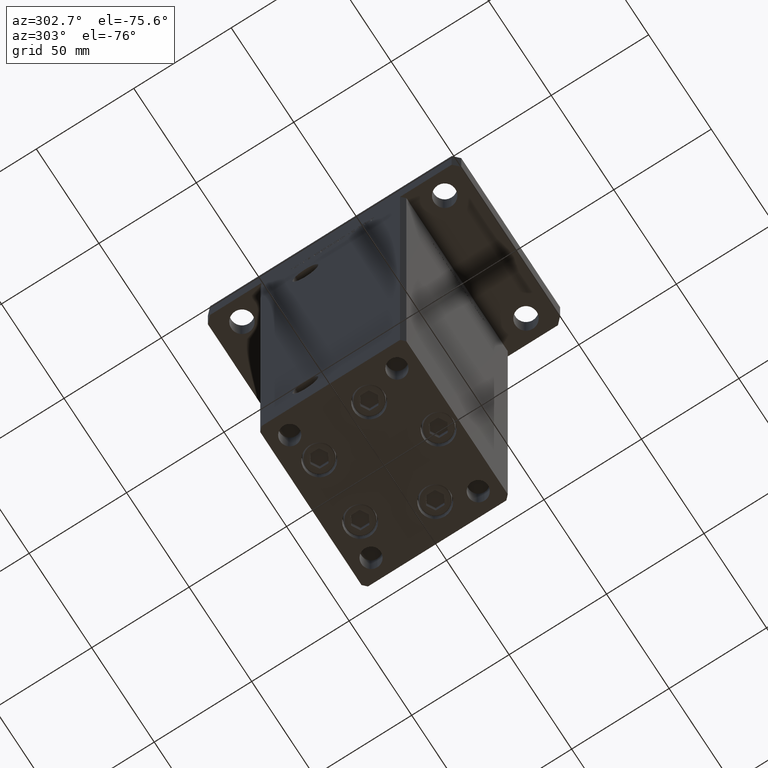
[diagram: clean part render]
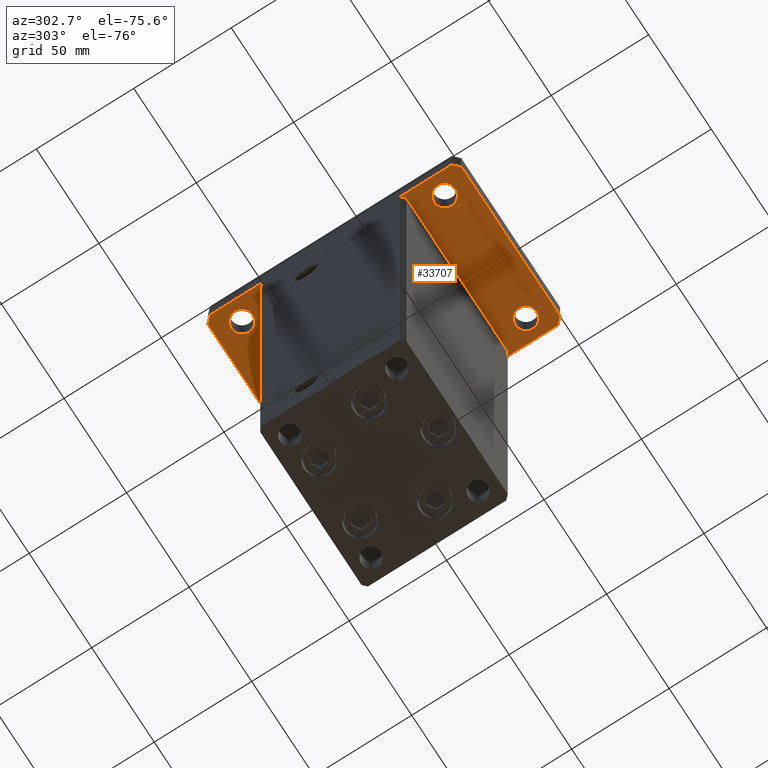
[diagram: same view with one face highlighted and labeled with its STEP entity id]
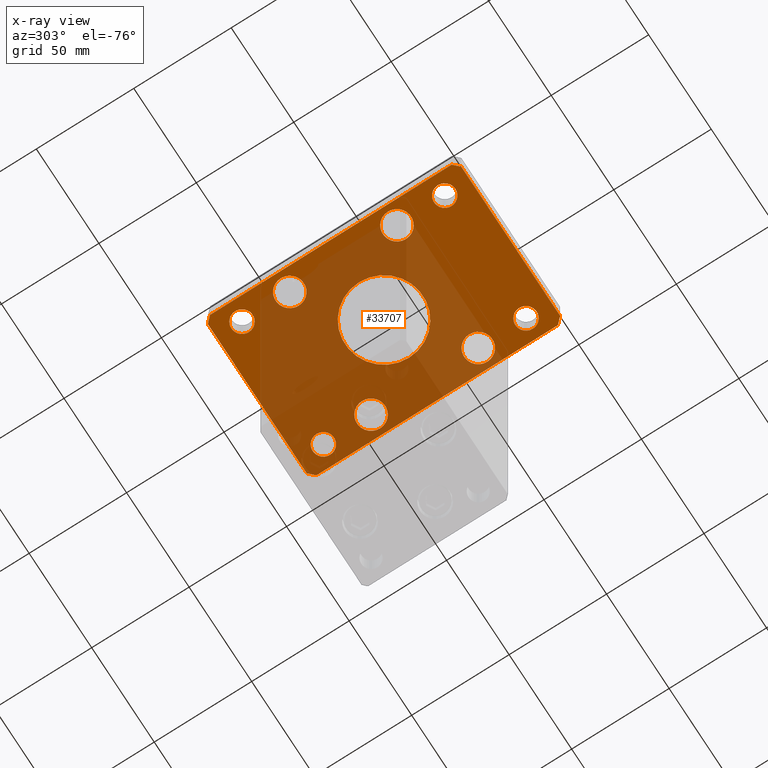
[diagram: x-ray of the same camera — body ghosted, the highlighted face saturated]
A machine part, auxiliary view. The second image highlights one B-rep face of the part: STEP entity #33707.
The next image is the same camera in x-ray: the body ghosted, the highlighted face saturated — about 61% of this face is hidden behind the body in this view.
In plain terms, the highlighted planar face has unit normal (0, 0, 1).
Its self-contained STEP definition (entity closure, byte-faithful):
#811 = CARTESIAN_POINT ( 'NONE',  ( 32.50000000000000000, 51.99999999999999289, 0.000000000000000000 ) ) ;
#830 = EDGE_CURVE ( 'NONE', #23466, #4563, #28311, .T. ) ;
#1159 = AXIS2_PLACEMENT_3D ( 'NONE', #33738, #38326, #25861 ) ;
#1207 = LINE ( 'NONE', #46744, #20004 ) ;
#1465 = CARTESIAN_POINT ( 'NONE',  ( 0.000000000000000000, 0.000000000000000000, 0.000000000000000000 ) ) ;
#1791 = DIRECTION ( 'NONE',  ( 1.000000000000000000, 0.000000000000000000, 0.000000000000000000 ) ) ;
#1895 = VECTOR ( 'NONE', #32898, 1000.000000000000000 ) ;
#2286 = ORIENTED_EDGE ( 'NONE', *, *, #38781, .T. ) ;
#2293 = FACE_BOUND ( 'NONE', #50921, .T. ) ;
#2374 = EDGE_CURVE ( 'NONE', #50977, #36416, #36636, .T. ) ;
#2878 = EDGE_CURVE ( 'NONE', #34114, #34511, #6334, .T. ) ;
#3084 = VERTEX_POINT ( 'NONE', #14997 ) ;
#3096 = EDGE_CURVE ( 'NONE', #11212, #7724, #12414, .T. ) ;
#3319 = ORIENTED_EDGE ( 'NONE', *, *, #7684, .T. ) ;
#3340 = LINE ( 'NONE', #23938, #20313 ) ;
#3637 = EDGE_CURVE ( 'NONE', #45139, #43926, #25458, .T. ) ;
#3762 = VERTEX_POINT ( 'NONE', #40183 ) ;
#4294 = CARTESIAN_POINT ( 'NONE',  ( -32.50000000000000711, 27.50000000000000000, 0.000000000000000000 ) ) ;
#4563 = VERTEX_POINT ( 'NONE', #38650 ) ;
#4836 = CIRCLE ( 'NONE', #46403, 5.499999999999994671 ) ;
#4901 = EDGE_LOOP ( 'NONE', ( #30068, #33505 ) ) ;
#5387 = VERTEX_POINT ( 'NONE', #19126 ) ;
#5391 = CIRCLE ( 'NONE', #29615, 7.249999999999999112 ) ;
#6130 = CIRCLE ( 'NONE', #39912, 5.499999999999991118 ) ;
#6326 = DIRECTION ( 'NONE',  ( 0.000000000000000000, 0.000000000000000000, 1.000000000000000000 ) ) ;
#6334 = CIRCLE ( 'NONE', #1159, 7.249999999999999112 ) ;
#6581 = AXIS2_PLACEMENT_3D ( 'NONE', #12352, #28887, #45160 ) ;
#6867 = CARTESIAN_POINT ( 'NONE',  ( 32.49999999999997868, -52.00000000000000711, 0.000000000000000000 ) ) ;
#6972 = EDGE_CURVE ( 'NONE', #31096, #45150, #3340, .T. ) ;
#7098 = DIRECTION ( 'NONE',  ( 0.000000000000000000, 0.000000000000000000, 1.000000000000000000 ) ) ;
#7130 = VECTOR ( 'NONE', #32280, 1000.000000000000000 ) ;
#7431 = CARTESIAN_POINT ( 'NONE',  ( 42.50000000000000000, -61.99999999999988631, 0.000000000000000000 ) ) ;
#7684 = EDGE_CURVE ( 'NONE', #30173, #52869, #23835, .T. ) ;
#7717 = DIRECTION ( 'NONE',  ( 0.7071067811865459074, 0.7071067811865491270, 0.000000000000000000 ) ) ;
#7724 = VERTEX_POINT ( 'NONE', #27075 ) ;
#8041 = ORIENTED_EDGE ( 'NONE', *, *, #36213, .F. ) ;
#9123 = EDGE_CURVE ( 'NONE', #23507, #5387, #26463, .T. ) ;
#9261 = VERTEX_POINT ( 'NONE', #45064 ) ;
#9606 = EDGE_CURVE ( 'NONE', #27660, #28420, #4836, .T. ) ;
#9615 = AXIS2_PLACEMENT_3D ( 'NONE', #11218, #44021, #47546 ) ;
#9962 = CIRCLE ( 'NONE', #35075, 20.00000000000000000 ) ;
#10002 = CARTESIAN_POINT ( 'NONE',  ( 32.50000000000000000, -27.50000000000000000, 0.000000000000000000 ) ) ;
#10122 = DIRECTION ( 'NONE',  ( 1.000000000000000000, 0.000000000000000000, 0.000000000000000000 ) ) ;
#10178 = FACE_BOUND ( 'NONE', #39776, .T. ) ;
#10279 = CARTESIAN_POINT ( 'NONE',  ( 39.50000000000001421, -64.99999999999988631, 0.000000000000000000 ) ) ;
#10711 = DIRECTION ( 'NONE',  ( 1.000000000000000000, 0.000000000000000000, -0.000000000000000000 ) ) ;
#10778 = CARTESIAN_POINT ( 'NONE',  ( -32.49999999999997868, -52.00000000000000711, 0.000000000000000000 ) ) ;
#11091 = CARTESIAN_POINT ( 'NONE',  ( 42.50000000000000000, 62.00000000000000711, 0.000000000000000000 ) ) ;
#11093 = CARTESIAN_POINT ( 'NONE',  ( 32.50000000000000000, 27.50000000000000000, 0.000000000000000000 ) ) ;
#11212 = VERTEX_POINT ( 'NONE', #45823 ) ;
#11218 = CARTESIAN_POINT ( 'NONE',  ( 32.49999999999997868, -52.00000000000000711, 0.000000000000000000 ) ) ;
#11311 = AXIS2_PLACEMENT_3D ( 'NONE', #30130, #30386, #39320 ) ;
#11379 = VERTEX_POINT ( 'NONE', #35771 ) ;
#11817 = CARTESIAN_POINT ( 'NONE',  ( 39.50000000000002842, 65.00000000000002842, 0.000000000000000000 ) ) ;
#12352 = CARTESIAN_POINT ( 'NONE',  ( 0.000000000000000000, 0.000000000000000000, 0.000000000000000000 ) ) ;
#12364 = ORIENTED_EDGE ( 'NONE', *, *, #34809, .T. ) ;
#12376 = VECTOR ( 'NONE', #7717, 1000.000000000000114 ) ;
#12414 = CIRCLE ( 'NONE', #14168, 5.499999999999998224 ) ;
#12690 = ORIENTED_EDGE ( 'NONE', *, *, #22394, .T. ) ;
#12923 = ORIENTED_EDGE ( 'NONE', *, *, #21895, .T. ) ;
#13179 = DIRECTION ( 'NONE',  ( 1.000000000000000000, 0.000000000000000000, 0.000000000000000000 ) ) ;
#14083 = DIRECTION ( 'NONE',  ( 1.000000000000000000, 0.000000000000000000, 0.000000000000000000 ) ) ;
#14168 = AXIS2_PLACEMENT_3D ( 'NONE', #6867, #15268, #48330 ) ;
#14185 = DIRECTION ( 'NONE',  ( 0.000000000000000000, 0.000000000000000000, 1.000000000000000000 ) ) ;
#14202 = CARTESIAN_POINT ( 'NONE',  ( 27.00000000000001421, 51.99999999999999289, 0.000000000000000000 ) ) ;
#14476 = VERTEX_POINT ( 'NONE', #29836 ) ;
#14511 = ORIENTED_EDGE ( 'NONE', *, *, #6972, .F. ) ;
#14767 = FACE_OUTER_BOUND ( 'NONE', #19247, .T. ) ;
#14997 = CARTESIAN_POINT ( 'NONE',  ( -37.99999999999997868, -52.00000000000000711, 0.000000000000000000 ) ) ;
#15178 = CARTESIAN_POINT ( 'NONE',  ( -27.00000000000000711, 52.00000000000000000, 0.000000000000000000 ) ) ;
#15268 = DIRECTION ( 'NONE',  ( 0.000000000000000000, 0.000000000000000000, 1.000000000000000000 ) ) ;
#15270 = DIRECTION ( 'NONE',  ( 1.000000000000000000, 0.000000000000000000, 0.000000000000000000 ) ) ;
#15337 = ORIENTED_EDGE ( 'NONE', *, *, #27150, .T. ) ;
#15538 = AXIS2_PLACEMENT_3D ( 'NONE', #25469, #37940, #37664 ) ;
#15810 = CARTESIAN_POINT ( 'NONE',  ( 39.75000000000000000, -27.50000000000000000, 0.000000000000000000 ) ) ;
#15834 = DIRECTION ( 'NONE',  ( 1.000000000000000000, 0.000000000000000000, 0.000000000000000000 ) ) ;
#16104 = DIRECTION ( 'NONE',  ( 0.000000000000000000, 0.000000000000000000, 1.000000000000000000 ) ) ;
#16262 = CARTESIAN_POINT ( 'NONE',  ( 25.25000000000000000, 27.50000000000000000, 0.000000000000000000 ) ) ;
#16579 = VECTOR ( 'NONE', #24283, 1000.000000000000000 ) ;
#17246 = CARTESIAN_POINT ( 'NONE',  ( -32.49999999999997868, -52.00000000000000711, 0.000000000000000000 ) ) ;
#17350 = DIRECTION ( 'NONE',  ( 0.000000000000000000, 0.000000000000000000, 1.000000000000000000 ) ) ;
#18313 = ORIENTED_EDGE ( 'NONE', *, *, #46250, .F. ) ;
#18565 = FACE_BOUND ( 'NONE', #23307, .T. ) ;
#19099 = FACE_BOUND ( 'NONE', #4901, .T. ) ;
#19106 = VERTEX_POINT ( 'NONE', #44227 ) ;
#19126 = CARTESIAN_POINT ( 'NONE',  ( 20.00000000000000000, 2.449293598294706513E-15, 0.000000000000000000 ) ) ;
#19247 = EDGE_LOOP ( 'NONE', ( #8041, #38041, #28377, #30850, #52212, #14511, #48709, #52485 ) ) ;
#19489 = DIRECTION ( 'NONE',  ( 0.000000000000000000, 0.000000000000000000, 1.000000000000000000 ) ) ;
#19551 = LINE ( 'NONE', #26876, #35106 ) ;
#19727 = EDGE_CURVE ( 'NONE', #14476, #3084, #20486, .T. ) ;
#20004 = VECTOR ( 'NONE', #26401, 1000.000000000000000 ) ;
#20279 = AXIS2_PLACEMENT_3D ( 'NONE', #51590, #6326, #15270 ) ;
#20313 = VECTOR ( 'NONE', #44543, 1000.000000000000000 ) ;
#20461 = CARTESIAN_POINT ( 'NONE',  ( 37.99999999999999289, 51.99999999999999289, 0.000000000000000000 ) ) ;
#20486 = CIRCLE ( 'NONE', #34351, 5.499999999999994671 ) ;
#20695 = CARTESIAN_POINT ( 'NONE',  ( -32.50000000000000000, -27.50000000000000000, 0.000000000000000000 ) ) ;
#20857 = CIRCLE ( 'NONE', #9615, 5.499999999999998224 ) ;
#21584 = ORIENTED_EDGE ( 'NONE', *, *, #9123, .F. ) ;
#21895 = EDGE_CURVE ( 'NONE', #34511, #34114, #41336, .T. ) ;
#22070 = DIRECTION ( 'NONE',  ( 0.000000000000000000, 0.000000000000000000, -1.000000000000000000 ) ) ;
#22102 = DIRECTION ( 'NONE',  ( 0.000000000000000000, 0.000000000000000000, 1.000000000000000000 ) ) ;
#22192 = DIRECTION ( 'NONE',  ( 1.000000000000000000, 0.000000000000000000, 0.000000000000000000 ) ) ;
#22385 = VECTOR ( 'NONE', #49259, 1000.000000000000000 ) ;
#22394 = EDGE_CURVE ( 'NONE', #3084, #14476, #24047, .T. ) ;
#22903 = CARTESIAN_POINT ( 'NONE',  ( 0.000000000000000000, 0.000000000000000000, 0.000000000000000000 ) ) ;
#22970 = DIRECTION ( 'NONE',  ( 1.000000000000000000, 0.000000000000000000, 0.000000000000000000 ) ) ;
#23007 = CARTESIAN_POINT ( 'NONE',  ( -20.00000000000000000, 0.000000000000000000, 0.000000000000000000 ) ) ;
#23307 = EDGE_LOOP ( 'NONE', ( #12690, #50574 ) ) ;
#23466 = VERTEX_POINT ( 'NONE', #10279 ) ;
#23507 = VERTEX_POINT ( 'NONE', #23007 ) ;
#23835 = CIRCLE ( 'NONE', #33352, 7.249999999999999112 ) ;
#23938 = CARTESIAN_POINT ( 'NONE',  ( 42.50000000000000000, 62.00000000000000711, 0.000000000000000000 ) ) ;
#24047 = CIRCLE ( 'NONE', #50864, 5.499999999999994671 ) ;
#24080 = EDGE_LOOP ( 'NONE', ( #53237, #12364 ) ) ;
#24283 = DIRECTION ( 'NONE',  ( -1.000000000000000000, -3.513364001978340512E-16, 0.000000000000000000 ) ) ;
#24386 = EDGE_CURVE ( 'NONE', #11379, #25165, #36804, .T. ) ;
#24559 = EDGE_LOOP ( 'NONE', ( #21584, #18313 ) ) ;
#25116 = ORIENTED_EDGE ( 'NONE', *, *, #45330, .T. ) ;
#25165 = VERTEX_POINT ( 'NONE', #26485 ) ;
#25458 = CIRCLE ( 'NONE', #51416, 5.499999999999991118 ) ;
#25469 = CARTESIAN_POINT ( 'NONE',  ( 32.50000000000000000, 27.50000000000000000, 0.000000000000000000 ) ) ;
#25656 = CARTESIAN_POINT ( 'NONE',  ( -32.50000000000000000, -27.50000000000000000, 0.000000000000000000 ) ) ;
#25861 = DIRECTION ( 'NONE',  ( 1.000000000000000000, 0.000000000000000000, 0.000000000000000000 ) ) ;
#26254 = DIRECTION ( 'NONE',  ( 0.000000000000000000, 0.000000000000000000, 1.000000000000000000 ) ) ;
#26302 = CARTESIAN_POINT ( 'NONE',  ( -25.25000000000000000, -27.50000000000000000, 0.000000000000000000 ) ) ;
#26401 = DIRECTION ( 'NONE',  ( 1.000000000000000000, 1.405345600791337191E-15, 0.000000000000000000 ) ) ;
#26463 = CIRCLE ( 'NONE', #6581, 20.00000000000000000 ) ;
#26485 = CARTESIAN_POINT ( 'NONE',  ( -39.50000000000000000, -65.00000000000000000, 0.000000000000000000 ) ) ;
#26696 = FACE_BOUND ( 'NONE', #45778, .T. ) ;
#26876 = CARTESIAN_POINT ( 'NONE',  ( -42.50000000000002132, 62.00000000000000711, 0.000000000000000000 ) ) ;
#27075 = CARTESIAN_POINT ( 'NONE',  ( 26.99999999999998579, -52.00000000000000711, 0.000000000000000000 ) ) ;
#27150 = EDGE_CURVE ( 'NONE', #52869, #30173, #52729, .T. ) ;
#27660 = VERTEX_POINT ( 'NONE', #29959 ) ;
#27745 = CIRCLE ( 'NONE', #35580, 7.249999999999999112 ) ;
#28311 = LINE ( 'NONE', #44855, #12376 ) ;
#28377 = ORIENTED_EDGE ( 'NONE', *, *, #47292, .F. ) ;
#28420 = VERTEX_POINT ( 'NONE', #15178 ) ;
#28859 = AXIS2_PLACEMENT_3D ( 'NONE', #10002, #26254, #22192 ) ;
#28887 = DIRECTION ( 'NONE',  ( 0.000000000000000000, 0.000000000000000000, -1.000000000000000000 ) ) ;
#29213 = CARTESIAN_POINT ( 'NONE',  ( -42.49999999999999289, -62.00000000000001421, 0.000000000000000000 ) ) ;
#29236 = AXIS2_PLACEMENT_3D ( 'NONE', #4294, #7098, #40169 ) ;
#29615 = AXIS2_PLACEMENT_3D ( 'NONE', #20695, #16104, #15834 ) ;
#29836 = CARTESIAN_POINT ( 'NONE',  ( -26.99999999999998579, -52.00000000000000711, 0.000000000000000000 ) ) ;
#29959 = CARTESIAN_POINT ( 'NONE',  ( -38.00000000000000000, 52.00000000000000000, 0.000000000000000000 ) ) ;
#30068 = ORIENTED_EDGE ( 'NONE', *, *, #30950, .T. ) ;
#30130 = CARTESIAN_POINT ( 'NONE',  ( -32.50000000000000000, 52.00000000000000000, 0.000000000000000000 ) ) ;
#30138 = EDGE_LOOP ( 'NONE', ( #38093, #2286 ) ) ;
#30173 = VERTEX_POINT ( 'NONE', #16262 ) ;
#30386 = DIRECTION ( 'NONE',  ( 0.000000000000000000, 0.000000000000000000, 1.000000000000000000 ) ) ;
#30472 = DIRECTION ( 'NONE',  ( -1.000000000000000000, 0.000000000000000000, 0.000000000000000000 ) ) ;
#30504 = FACE_BOUND ( 'NONE', #24080, .T. ) ;
#30505 = DIRECTION ( 'NONE',  ( 0.000000000000000000, 0.000000000000000000, 1.000000000000000000 ) ) ;
#30697 = CIRCLE ( 'NONE', #20279, 7.249999999999999112 ) ;
#30774 = PLANE ( 'NONE',  #41726 ) ;
#30850 = ORIENTED_EDGE ( 'NONE', *, *, #39883, .F. ) ;
#30950 = EDGE_CURVE ( 'NONE', #43926, #45139, #6130, .T. ) ;
#31096 = VERTEX_POINT ( 'NONE', #11091 ) ;
#31687 = EDGE_CURVE ( 'NONE', #7724, #11212, #20857, .T. ) ;
#32159 = DIRECTION ( 'NONE',  ( 0.000000000000000000, 0.000000000000000000, 1.000000000000000000 ) ) ;
#32175 = EDGE_CURVE ( 'NONE', #45150, #19106, #53002, .T. ) ;
#32280 = DIRECTION ( 'NONE',  ( -0.7071067811865466846, -0.7071067811865483499, 0.000000000000000000 ) ) ;
#32434 = CARTESIAN_POINT ( 'NONE',  ( 39.75000000000000000, 27.50000000000000000, 0.000000000000000000 ) ) ;
#32898 = DIRECTION ( 'NONE',  ( 0.000000000000000000, 1.000000000000000000, 0.000000000000000000 ) ) ;
#32916 = VERTEX_POINT ( 'NONE', #26302 ) ;
#33352 = AXIS2_PLACEMENT_3D ( 'NONE', #11093, #19489, #44422 ) ;
#33505 = ORIENTED_EDGE ( 'NONE', *, *, #3637, .T. ) ;
#33707 = ADVANCED_FACE ( 'NONE', ( #47289, #14767, #18565, #19099, #30504, #35109, #10178, #39706, #2293, #26696 ), #30774, .F. ) ;
#33738 = CARTESIAN_POINT ( 'NONE',  ( -32.50000000000000711, 27.50000000000000000, 0.000000000000000000 ) ) ;
#34114 = VERTEX_POINT ( 'NONE', #36900 ) ;
#34351 = AXIS2_PLACEMENT_3D ( 'NONE', #10778, #32159, #22970 ) ;
#34511 = VERTEX_POINT ( 'NONE', #41047 ) ;
#34621 = ORIENTED_EDGE ( 'NONE', *, *, #2878, .T. ) ;
#34788 = ORIENTED_EDGE ( 'NONE', *, *, #31687, .T. ) ;
#34809 = EDGE_CURVE ( 'NONE', #28420, #27660, #40743, .T. ) ;
#35075 = AXIS2_PLACEMENT_3D ( 'NONE', #1465, #22070, #30472 ) ;
#35106 = VECTOR ( 'NONE', #39881, 1000.000000000000000 ) ;
#35109 = FACE_BOUND ( 'NONE', #30138, .T. ) ;
#35267 = CARTESIAN_POINT ( 'NONE',  ( 25.25000000000000000, -27.50000000000000000, 0.000000000000000000 ) ) ;
#35345 = EDGE_CURVE ( 'NONE', #9261, #32916, #27745, .T. ) ;
#35580 = AXIS2_PLACEMENT_3D ( 'NONE', #25656, #43000, #43263 ) ;
#35771 = CARTESIAN_POINT ( 'NONE',  ( -42.49999999999999289, -62.00000000000001421, 0.000000000000000000 ) ) ;
#36213 = EDGE_CURVE ( 'NONE', #25165, #23466, #1207, .T. ) ;
#36384 = EDGE_LOOP ( 'NONE', ( #3319, #15337 ) ) ;
#36416 = VERTEX_POINT ( 'NONE', #15810 ) ;
#36608 = LINE ( 'NONE', #52857, #7130 ) ;
#36636 = CIRCLE ( 'NONE', #28859, 7.249999999999999112 ) ;
#36804 = LINE ( 'NONE', #29213, #22385 ) ;
#36900 = CARTESIAN_POINT ( 'NONE',  ( -25.25000000000000711, 27.50000000000000000, 0.000000000000000000 ) ) ;
#36967 = LINE ( 'NONE', #7431, #1895 ) ;
#36997 = CARTESIAN_POINT ( 'NONE',  ( 39.50000000000002842, 65.00000000000002842, 0.000000000000000000 ) ) ;
#37664 = DIRECTION ( 'NONE',  ( 1.000000000000000000, 0.000000000000000000, 0.000000000000000000 ) ) ;
#37940 = DIRECTION ( 'NONE',  ( 0.000000000000000000, 0.000000000000000000, 1.000000000000000000 ) ) ;
#38041 = ORIENTED_EDGE ( 'NONE', *, *, #24386, .F. ) ;
#38093 = ORIENTED_EDGE ( 'NONE', *, *, #35345, .T. ) ;
#38326 = DIRECTION ( 'NONE',  ( 0.000000000000000000, 0.000000000000000000, 1.000000000000000000 ) ) ;
#38650 = CARTESIAN_POINT ( 'NONE',  ( 42.50000000000000000, -61.99999999999988631, 0.000000000000000000 ) ) ;
#38781 = EDGE_CURVE ( 'NONE', #32916, #9261, #5391, .T. ) ;
#38843 = EDGE_CURVE ( 'NONE', #4563, #31096, #36967, .T. ) ;
#39320 = DIRECTION ( 'NONE',  ( 1.000000000000000000, 0.000000000000000000, 0.000000000000000000 ) ) ;
#39480 = DIRECTION ( 'NONE',  ( 0.000000000000000000, 0.000000000000000000, 1.000000000000000000 ) ) ;
#39706 = FACE_BOUND ( 'NONE', #36384, .T. ) ;
#39743 = CARTESIAN_POINT ( 'NONE',  ( -32.50000000000000000, 52.00000000000000000, 0.000000000000000000 ) ) ;
#39776 = EDGE_LOOP ( 'NONE', ( #43247, #25116 ) ) ;
#39881 = DIRECTION ( 'NONE',  ( 2.238352872228137677E-16, -1.000000000000000000, 0.000000000000000000 ) ) ;
#39883 = EDGE_CURVE ( 'NONE', #19106, #3762, #36608, .T. ) ;
#39912 = AXIS2_PLACEMENT_3D ( 'NONE', #811, #17350, #14083 ) ;
#40169 = DIRECTION ( 'NONE',  ( 1.000000000000000000, 0.000000000000000000, 0.000000000000000000 ) ) ;
#40183 = CARTESIAN_POINT ( 'NONE',  ( -42.50000000000002132, 62.00000000000000711, 0.000000000000000000 ) ) ;
#40743 = CIRCLE ( 'NONE', #11311, 5.499999999999994671 ) ;
#41047 = CARTESIAN_POINT ( 'NONE',  ( -39.75000000000000711, 27.50000000000000000, 0.000000000000000000 ) ) ;
#41336 = CIRCLE ( 'NONE', #29236, 7.249999999999999112 ) ;
#41726 = AXIS2_PLACEMENT_3D ( 'NONE', #22903, #22102, #10711 ) ;
#43000 = DIRECTION ( 'NONE',  ( 0.000000000000000000, 0.000000000000000000, 1.000000000000000000 ) ) ;
#43247 = ORIENTED_EDGE ( 'NONE', *, *, #2374, .T. ) ;
#43263 = DIRECTION ( 'NONE',  ( 1.000000000000000000, 0.000000000000000000, 0.000000000000000000 ) ) ;
#43926 = VERTEX_POINT ( 'NONE', #14202 ) ;
#44021 = DIRECTION ( 'NONE',  ( 0.000000000000000000, 0.000000000000000000, 1.000000000000000000 ) ) ;
#44227 = CARTESIAN_POINT ( 'NONE',  ( -39.50000000000003553, 65.00000000000000000, 0.000000000000000000 ) ) ;
#44422 = DIRECTION ( 'NONE',  ( 1.000000000000000000, 0.000000000000000000, 0.000000000000000000 ) ) ;
#44543 = DIRECTION ( 'NONE',  ( -0.7071067811865417996, 0.7071067811865532349, 0.000000000000000000 ) ) ;
#44855 = CARTESIAN_POINT ( 'NONE',  ( 39.50000000000001421, -64.99999999999988631, 0.000000000000000000 ) ) ;
#45064 = CARTESIAN_POINT ( 'NONE',  ( -39.75000000000000000, -27.50000000000000000, 0.000000000000000000 ) ) ;
#45139 = VERTEX_POINT ( 'NONE', #20461 ) ;
#45150 = VERTEX_POINT ( 'NONE', #36997 ) ;
#45160 = DIRECTION ( 'NONE',  ( -1.000000000000000000, 0.000000000000000000, 0.000000000000000000 ) ) ;
#45330 = EDGE_CURVE ( 'NONE', #36416, #50977, #30697, .T. ) ;
#45778 = EDGE_LOOP ( 'NONE', ( #34788, #46486 ) ) ;
#45823 = CARTESIAN_POINT ( 'NONE',  ( 37.99999999999997868, -52.00000000000000711, 0.000000000000000000 ) ) ;
#46250 = EDGE_CURVE ( 'NONE', #5387, #23507, #9962, .T. ) ;
#46403 = AXIS2_PLACEMENT_3D ( 'NONE', #39743, #39480, #1791 ) ;
#46486 = ORIENTED_EDGE ( 'NONE', *, *, #3096, .T. ) ;
#46744 = CARTESIAN_POINT ( 'NONE',  ( -39.50000000000000000, -65.00000000000000000, 0.000000000000000000 ) ) ;
#47289 = FACE_BOUND ( 'NONE', #24559, .T. ) ;
#47292 = EDGE_CURVE ( 'NONE', #3762, #11379, #19551, .T. ) ;
#47546 = DIRECTION ( 'NONE',  ( 1.000000000000000000, 0.000000000000000000, 0.000000000000000000 ) ) ;
#48330 = DIRECTION ( 'NONE',  ( 1.000000000000000000, 0.000000000000000000, 0.000000000000000000 ) ) ;
#48709 = ORIENTED_EDGE ( 'NONE', *, *, #38843, .F. ) ;
#49259 = DIRECTION ( 'NONE',  ( 0.7071067811865483499, -0.7071067811865466846, 0.000000000000000000 ) ) ;
#50574 = ORIENTED_EDGE ( 'NONE', *, *, #19727, .T. ) ;
#50864 = AXIS2_PLACEMENT_3D ( 'NONE', #17246, #30505, #13179 ) ;
#50921 = EDGE_LOOP ( 'NONE', ( #12923, #34621 ) ) ;
#50977 = VERTEX_POINT ( 'NONE', #35267 ) ;
#51296 = CARTESIAN_POINT ( 'NONE',  ( 32.50000000000000000, 51.99999999999999289, 0.000000000000000000 ) ) ;
#51416 = AXIS2_PLACEMENT_3D ( 'NONE', #51296, #14185, #10122 ) ;
#51590 = CARTESIAN_POINT ( 'NONE',  ( 32.50000000000000000, -27.50000000000000000, 0.000000000000000000 ) ) ;
#52212 = ORIENTED_EDGE ( 'NONE', *, *, #32175, .F. ) ;
#52485 = ORIENTED_EDGE ( 'NONE', *, *, #830, .F. ) ;
#52729 = CIRCLE ( 'NONE', #15538, 7.249999999999999112 ) ;
#52857 = CARTESIAN_POINT ( 'NONE',  ( -39.50000000000003553, 65.00000000000000000, 0.000000000000000000 ) ) ;
#52869 = VERTEX_POINT ( 'NONE', #32434 ) ;
#53002 = LINE ( 'NONE', #11817, #16579 ) ;
#53237 = ORIENTED_EDGE ( 'NONE', *, *, #9606, .T. ) ;